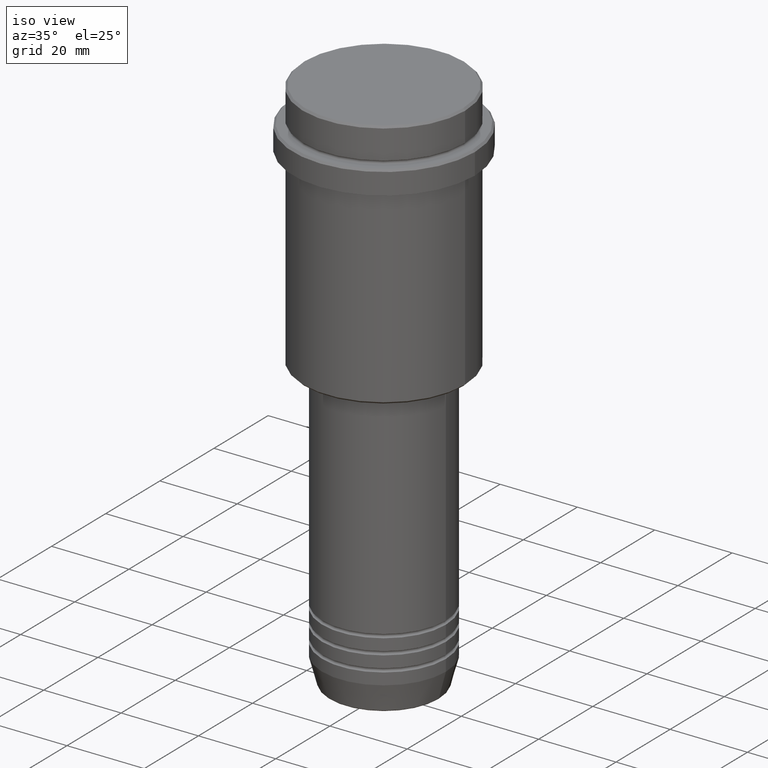
[diagram: clean part render]
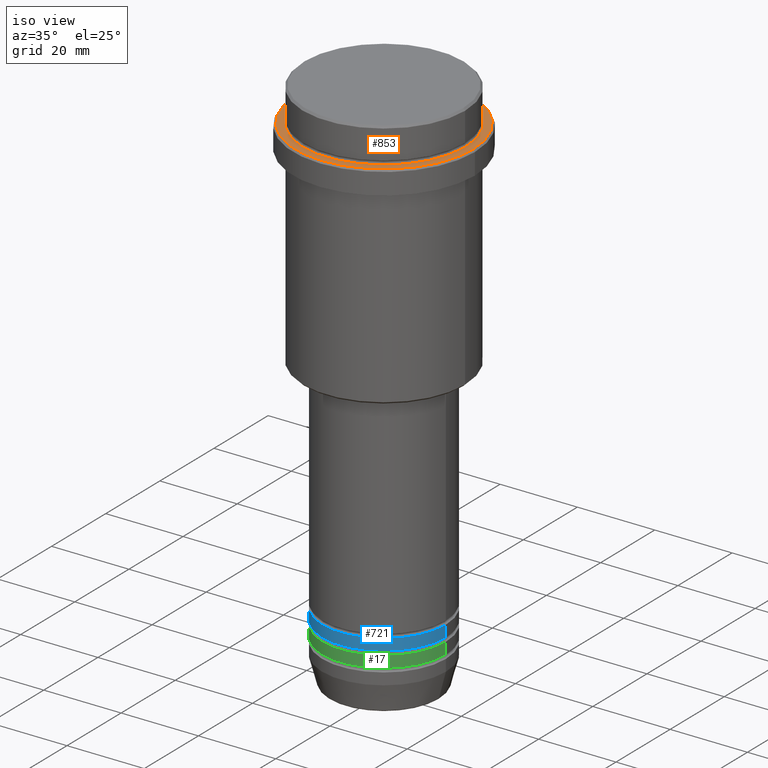
[diagram: same view with three faces highlighted in distinct colors, each labeled with its STEP entity id]
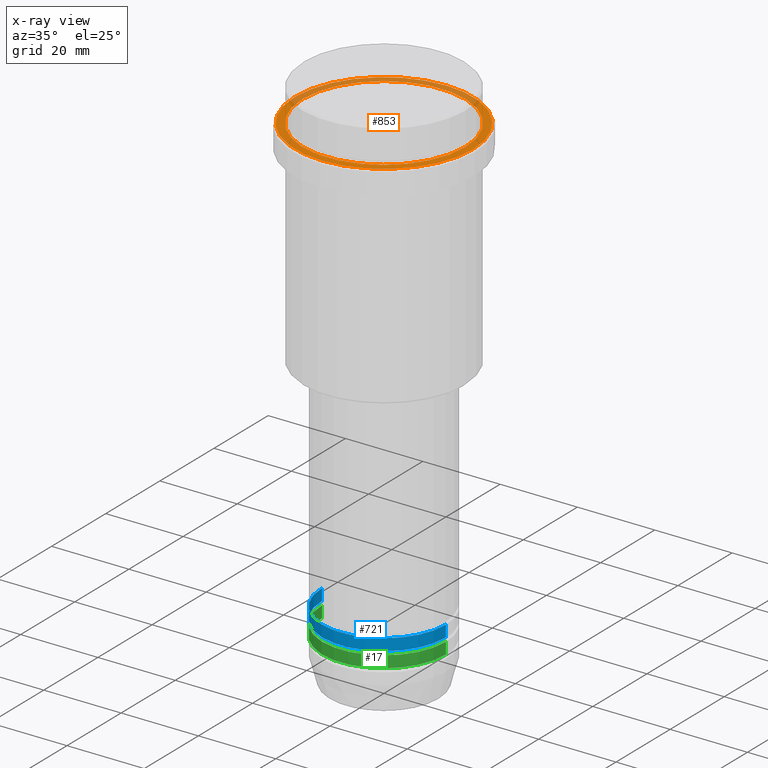
[diagram: x-ray of the same camera — body ghosted, the three highlighted faces saturated]
A machine part, iso view with three faces highlighted in distinct colors.
The next image is the same camera in x-ray (body ghosted, the three faces saturated) — at least one of them is partly hidden behind the body in this view.
Their STEP definitions:

[orange] entity #853 — the highlighted planar face has unit normal (0, -0, 1).
#31 = FACE_BOUND ( 'NONE', #140, .T. ) ;
#34 = CARTESIAN_POINT ( 'NONE',  ( 0.000000000000000000, 0.000000000000000000, -9.000000000000000000 ) ) ;
#55 = VERTEX_POINT ( 'NONE', #673 ) ;
#95 = VERTEX_POINT ( 'NONE', #236 ) ;
#140 = EDGE_LOOP ( 'NONE', ( #1172, #161 ) ) ;
#153 = VERTEX_POINT ( 'NONE', #1199 ) ;
#161 = ORIENTED_EDGE ( 'NONE', *, *, #743, .T. ) ;
#172 = CARTESIAN_POINT ( 'NONE',  ( 0.000000000000000000, 0.000000000000000000, -9.000000000000000000 ) ) ;
#188 = EDGE_CURVE ( 'NONE', #55, #95, #1021, .T. ) ;
#236 = CARTESIAN_POINT ( 'NONE',  ( -20.99999999999999289, 2.571758278209440872E-15, -9.000000000000000000 ) ) ;
#256 = DIRECTION ( 'NONE',  ( 1.000000000000000000, 0.000000000000000000, 0.000000000000000000 ) ) ;
#263 = DIRECTION ( 'NONE',  ( 0.000000000000000000, 0.000000000000000000, -1.000000000000000000 ) ) ;
#298 = AXIS2_PLACEMENT_3D ( 'NONE', #1174, #363, #384 ) ;
#345 = PLANE ( 'NONE',  #1100 ) ;
#363 = DIRECTION ( 'NONE',  ( -0.000000000000000000, -0.000000000000000000, 1.000000000000000000 ) ) ;
#384 = DIRECTION ( 'NONE',  ( 1.000000000000000000, 0.000000000000000000, 0.000000000000000000 ) ) ;
#528 = VERTEX_POINT ( 'NONE', #1138 ) ;
#561 = CARTESIAN_POINT ( 'NONE',  ( 0.000000000000000000, 20.49999999999999645, -9.000000000000000000 ) ) ;
#573 = DIRECTION ( 'NONE',  ( 0.000000000000000000, -0.000000000000000000, 1.000000000000000000 ) ) ;
#579 = ORIENTED_EDGE ( 'NONE', *, *, #936, .T. ) ;
#596 = CIRCLE ( 'NONE', #298, 23.00000000000001066 ) ;
#635 = AXIS2_PLACEMENT_3D ( 'NONE', #780, #1333, #860 ) ;
#673 = CARTESIAN_POINT ( 'NONE',  ( 20.99999999999999289, 0.000000000000000000, -9.000000000000000000 ) ) ;
#676 = FACE_OUTER_BOUND ( 'NONE', #848, .T. ) ;
#680 = AXIS2_PLACEMENT_3D ( 'NONE', #172, #912, #256 ) ;
#686 = ORIENTED_EDGE ( 'NONE', *, *, #1085, .T. ) ;
#743 = EDGE_CURVE ( 'NONE', #95, #55, #1169, .T. ) ;
#780 = CARTESIAN_POINT ( 'NONE',  ( 0.000000000000000000, 0.000000000000000000, -9.000000000000000000 ) ) ;
#848 = EDGE_LOOP ( 'NONE', ( #579, #686 ) ) ;
#853 = ADVANCED_FACE ( 'NONE', ( #676, #31 ), #345, .T. ) ;
#860 = DIRECTION ( 'NONE',  ( 1.000000000000000000, 0.000000000000000000, 0.000000000000000000 ) ) ;
#896 = DIRECTION ( 'NONE',  ( 1.000000000000000000, 0.000000000000000000, 0.000000000000000000 ) ) ;
#912 = DIRECTION ( 'NONE',  ( 0.000000000000000000, 0.000000000000000000, -1.000000000000000000 ) ) ;
#936 = EDGE_CURVE ( 'NONE', #528, #153, #596, .T. ) ;
#1002 = DIRECTION ( 'NONE',  ( 1.000000000000000000, 0.000000000000000000, 0.000000000000000000 ) ) ;
#1021 = CIRCLE ( 'NONE', #680, 20.99999999999999289 ) ;
#1072 = AXIS2_PLACEMENT_3D ( 'NONE', #34, #263, #1002 ) ;
#1085 = EDGE_CURVE ( 'NONE', #153, #528, #1217, .T. ) ;
#1100 = AXIS2_PLACEMENT_3D ( 'NONE', #561, #573, #896 ) ;
#1138 = CARTESIAN_POINT ( 'NONE',  ( -23.00000000000001066, 0.000000000000000000, -9.000000000000000000 ) ) ;
#1169 = CIRCLE ( 'NONE', #1072, 20.99999999999999289 ) ;
#1172 = ORIENTED_EDGE ( 'NONE', *, *, #188, .T. ) ;
#1174 = CARTESIAN_POINT ( 'NONE',  ( 0.000000000000000000, 0.000000000000000000, -9.000000000000000000 ) ) ;
#1199 = CARTESIAN_POINT ( 'NONE',  ( 23.00000000000001066, 2.847303808017596928E-15, -9.000000000000000000 ) ) ;
#1217 = CIRCLE ( 'NONE', #635, 23.00000000000001066 ) ;
#1333 = DIRECTION ( 'NONE',  ( -0.000000000000000000, -0.000000000000000000, 1.000000000000000000 ) ) ;

[blue] entity #721 — the highlighted cylindrical surface (partial cylindrical patch) has radius 16 mm, axis along (-0, -0, 1).
#10 = CARTESIAN_POINT ( 'NONE',  ( 16.00000000000000000, 0.000000000000000000, -124.9999999999999005 ) ) ;
#28 = VERTEX_POINT ( 'NONE', #1327 ) ;
#38 = DIRECTION ( 'NONE',  ( -0.000000000000000000, -0.000000000000000000, 1.000000000000000000 ) ) ;
#60 = ORIENTED_EDGE ( 'NONE', *, *, #1228, .F. ) ;
#61 = EDGE_CURVE ( 'NONE', #1131, #1090, #879, .T. ) ;
#126 = CARTESIAN_POINT ( 'NONE',  ( -16.00000000000000000, 1.959434878635765131E-15, 0.000000000000000000 ) ) ;
#146 = ORIENTED_EDGE ( 'NONE', *, *, #61, .T. ) ;
#163 = ORIENTED_EDGE ( 'NONE', *, *, #1064, .T. ) ;
#225 = CARTESIAN_POINT ( 'NONE',  ( 16.00000000000000000, 0.000000000000000000, -121.9999999999999005 ) ) ;
#235 = EDGE_CURVE ( 'NONE', #1161, #1090, #572, .T. ) ;
#295 = AXIS2_PLACEMENT_3D ( 'NONE', #1104, #1076, #745 ) ;
#308 = FACE_OUTER_BOUND ( 'NONE', #601, .T. ) ;
#437 = DIRECTION ( 'NONE',  ( -0.000000000000000000, -0.000000000000000000, 1.000000000000000000 ) ) ;
#499 = DIRECTION ( 'NONE',  ( -0.000000000000000000, -0.000000000000000000, 1.000000000000000000 ) ) ;
#524 = AXIS2_PLACEMENT_3D ( 'NONE', #1035, #499, #798 ) ;
#531 = CIRCLE ( 'NONE', #707, 16.00000000000000000 ) ;
#566 = ORIENTED_EDGE ( 'NONE', *, *, #235, .F. ) ;
#572 = CIRCLE ( 'NONE', #524, 16.00000000000000000 ) ;
#601 = EDGE_LOOP ( 'NONE', ( #60, #163, #146, #566 ) ) ;
#659 = CARTESIAN_POINT ( 'NONE',  ( 16.00000000000000000, 0.000000000000000000, 0.000000000000000000 ) ) ;
#707 = AXIS2_PLACEMENT_3D ( 'NONE', #888, #990, #766 ) ;
#721 = ADVANCED_FACE ( 'NONE', ( #308 ), #874, .T. ) ;
#722 = CARTESIAN_POINT ( 'NONE',  ( -16.00000000000000000, 1.959434878635765131E-15, -121.9999999999999005 ) ) ;
#745 = DIRECTION ( 'NONE',  ( 1.000000000000000000, 0.000000000000000000, 0.000000000000000000 ) ) ;
#766 = DIRECTION ( 'NONE',  ( 1.000000000000000000, 0.000000000000000000, 0.000000000000000000 ) ) ;
#798 = DIRECTION ( 'NONE',  ( 1.000000000000000000, 0.000000000000000000, 0.000000000000000000 ) ) ;
#874 = CYLINDRICAL_SURFACE ( 'NONE', #295, 16.00000000000000000 ) ;
#879 = LINE ( 'NONE', #659, #1255 ) ;
#888 = CARTESIAN_POINT ( 'NONE',  ( 0.000000000000000000, 0.000000000000000000, -124.9999999999999005 ) ) ;
#990 = DIRECTION ( 'NONE',  ( -0.000000000000000000, -0.000000000000000000, 1.000000000000000000 ) ) ;
#1035 = CARTESIAN_POINT ( 'NONE',  ( 0.000000000000000000, 0.000000000000000000, -121.9999999999999005 ) ) ;
#1064 = EDGE_CURVE ( 'NONE', #28, #1131, #531, .T. ) ;
#1076 = DIRECTION ( 'NONE',  ( -0.000000000000000000, -0.000000000000000000, 1.000000000000000000 ) ) ;
#1090 = VERTEX_POINT ( 'NONE', #225 ) ;
#1103 = LINE ( 'NONE', #126, #1116 ) ;
#1104 = CARTESIAN_POINT ( 'NONE',  ( 0.000000000000000000, 0.000000000000000000, 0.000000000000000000 ) ) ;
#1116 = VECTOR ( 'NONE', #38, 1000.000000000000000 ) ;
#1131 = VERTEX_POINT ( 'NONE', #10 ) ;
#1161 = VERTEX_POINT ( 'NONE', #722 ) ;
#1228 = EDGE_CURVE ( 'NONE', #28, #1161, #1103, .T. ) ;
#1255 = VECTOR ( 'NONE', #437, 1000.000000000000000 ) ;
#1327 = CARTESIAN_POINT ( 'NONE',  ( -16.00000000000000000, 1.959434878635765131E-15, -124.9999999999999005 ) ) ;

[green] entity #17 — the highlighted cylindrical surface (partial cylindrical patch) has radius 16 mm, axis along (-0, -0, 1).
#17 = ADVANCED_FACE ( 'NONE', ( #1183 ), #33, .T. ) ;
#21 = VECTOR ( 'NONE', #710, 1000.000000000000000 ) ;
#33 = CYLINDRICAL_SURFACE ( 'NONE', #522, 16.00000000000000000 ) ;
#46 = EDGE_LOOP ( 'NONE', ( #729, #946, #191, #959 ) ) ;
#94 = VECTOR ( 'NONE', #981, 1000.000000000000000 ) ;
#112 = CARTESIAN_POINT ( 'NONE',  ( 16.00000000000000000, 0.000000000000000000, 0.000000000000000000 ) ) ;
#123 = DIRECTION ( 'NONE',  ( 1.000000000000000000, 0.000000000000000000, 0.000000000000000000 ) ) ;
#191 = ORIENTED_EDGE ( 'NONE', *, *, #1127, .T. ) ;
#196 = CARTESIAN_POINT ( 'NONE',  ( 16.00000000000000000, 0.000000000000000000, -125.9999999999998863 ) ) ;
#223 = CARTESIAN_POINT ( 'NONE',  ( 0.000000000000000000, 0.000000000000000000, 0.000000000000000000 ) ) ;
#238 = VERTEX_POINT ( 'NONE', #609 ) ;
#325 = AXIS2_PLACEMENT_3D ( 'NONE', #773, #433, #123 ) ;
#382 = LINE ( 'NONE', #816, #21 ) ;
#433 = DIRECTION ( 'NONE',  ( -0.000000000000000000, -0.000000000000000000, 1.000000000000000000 ) ) ;
#461 = DIRECTION ( 'NONE',  ( 1.000000000000000000, 0.000000000000000000, 0.000000000000000000 ) ) ;
#519 = VERTEX_POINT ( 'NONE', #824 ) ;
#522 = AXIS2_PLACEMENT_3D ( 'NONE', #223, #764, #461 ) ;
#609 = CARTESIAN_POINT ( 'NONE',  ( -16.00000000000000000, 1.959434878635765131E-15, -128.9999999999998863 ) ) ;
#641 = AXIS2_PLACEMENT_3D ( 'NONE', #787, #1049, #942 ) ;
#710 = DIRECTION ( 'NONE',  ( -0.000000000000000000, -0.000000000000000000, 1.000000000000000000 ) ) ;
#729 = ORIENTED_EDGE ( 'NONE', *, *, #1151, .F. ) ;
#764 = DIRECTION ( 'NONE',  ( -0.000000000000000000, -0.000000000000000000, 1.000000000000000000 ) ) ;
#773 = CARTESIAN_POINT ( 'NONE',  ( 0.000000000000000000, 0.000000000000000000, -128.9999999999998863 ) ) ;
#787 = CARTESIAN_POINT ( 'NONE',  ( 0.000000000000000000, 0.000000000000000000, -125.9999999999998863 ) ) ;
#816 = CARTESIAN_POINT ( 'NONE',  ( -16.00000000000000000, 1.959434878635765131E-15, 0.000000000000000000 ) ) ;
#824 = CARTESIAN_POINT ( 'NONE',  ( 16.00000000000000000, 0.000000000000000000, -128.9999999999998863 ) ) ;
#834 = CARTESIAN_POINT ( 'NONE',  ( -16.00000000000000000, 1.959434878635765131E-15, -125.9999999999998863 ) ) ;
#916 = EDGE_CURVE ( 'NONE', #996, #1390, #955, .T. ) ;
#942 = DIRECTION ( 'NONE',  ( 1.000000000000000000, 0.000000000000000000, 0.000000000000000000 ) ) ;
#946 = ORIENTED_EDGE ( 'NONE', *, *, #1083, .T. ) ;
#955 = CIRCLE ( 'NONE', #641, 16.00000000000000000 ) ;
#958 = CIRCLE ( 'NONE', #325, 16.00000000000000000 ) ;
#959 = ORIENTED_EDGE ( 'NONE', *, *, #916, .F. ) ;
#966 = LINE ( 'NONE', #112, #94 ) ;
#981 = DIRECTION ( 'NONE',  ( -0.000000000000000000, -0.000000000000000000, 1.000000000000000000 ) ) ;
#996 = VERTEX_POINT ( 'NONE', #834 ) ;
#1049 = DIRECTION ( 'NONE',  ( -0.000000000000000000, -0.000000000000000000, 1.000000000000000000 ) ) ;
#1083 = EDGE_CURVE ( 'NONE', #238, #519, #958, .T. ) ;
#1127 = EDGE_CURVE ( 'NONE', #519, #1390, #966, .T. ) ;
#1151 = EDGE_CURVE ( 'NONE', #238, #996, #382, .T. ) ;
#1183 = FACE_OUTER_BOUND ( 'NONE', #46, .T. ) ;
#1390 = VERTEX_POINT ( 'NONE', #196 ) ;